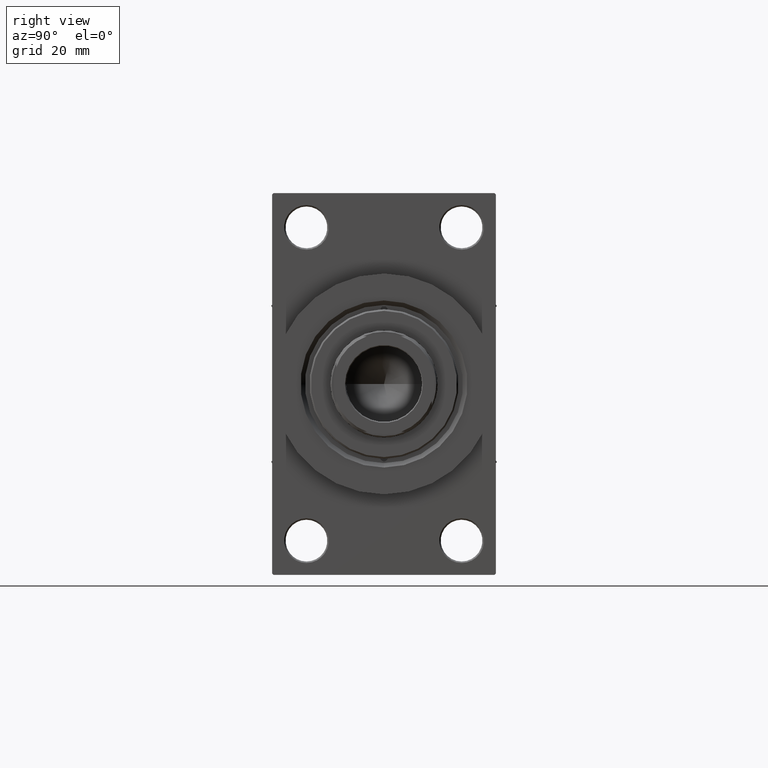
[diagram: clean part render]
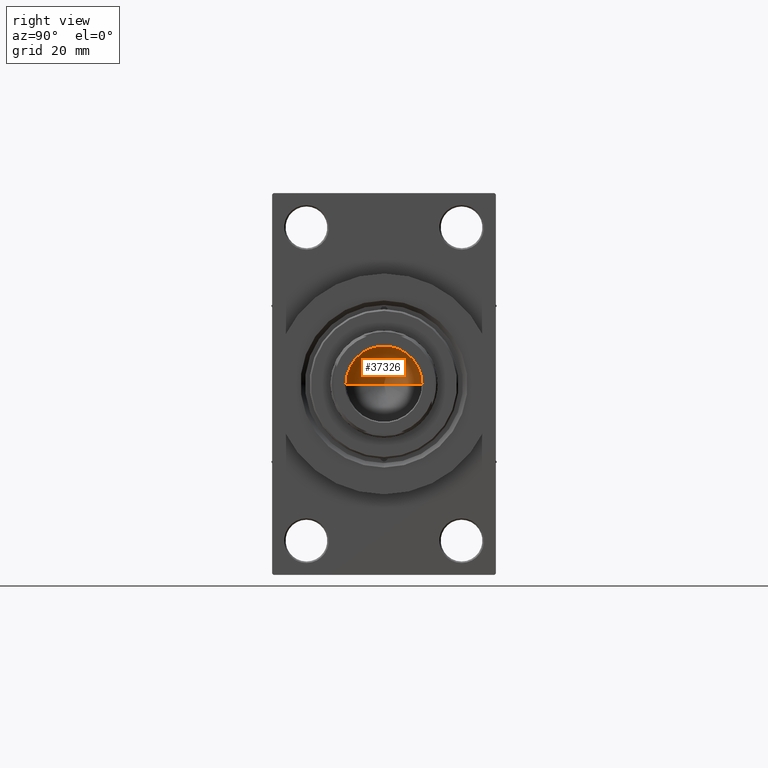
[diagram: same view with one face highlighted and labeled with its STEP entity id]
A machine part, right view. The second image highlights one B-rep face of the part: STEP entity #37326.
In plain terms, the highlighted conical surface has half-angle 59 deg.
Its self-contained STEP definition (entity closure, byte-faithful):
#455 = CIRCLE ( 'NONE', #32649, 12.74999999999998934 ) ;
#1174 = VERTEX_POINT ( 'NONE', #13029 ) ;
#1446 = EDGE_CURVE ( 'NONE', #29289, #32080, #32664, .T. ) ;
#2002 = VECTOR ( 'NONE', #11067, 1000.000000000000000 ) ;
#3103 = ORIENTED_EDGE ( 'NONE', *, *, #1446, .T. ) ;
#5238 = LINE ( 'NONE', #45566, #20052 ) ;
#10841 = ORIENTED_EDGE ( 'NONE', *, *, #32362, .F. ) ;
#11040 = AXIS2_PLACEMENT_3D ( 'NONE', #18596, #30119, #18840 ) ;
#11067 = DIRECTION ( 'NONE',  ( -0.8571673007021117785, 1.049727191138617956E-16, 0.5150380749100550437 ) ) ;
#13029 = CARTESIAN_POINT ( 'NONE',  ( 12.74999999999998934, 0.000000000000000000, 97.00000000000001421 ) ) ;
#15730 = FACE_OUTER_BOUND ( 'NONE', #43983, .T. ) ;
#18596 = CARTESIAN_POINT ( 'NONE',  ( 0.000000000000000000, 0.000000000000000000, 97.00000000000001421 ) ) ;
#18840 = DIRECTION ( 'NONE',  ( 1.000000000000000000, 0.000000000000000000, 0.000000000000000000 ) ) ;
#19836 = CARTESIAN_POINT ( 'NONE',  ( 0.000000000000000000, 0.000000000000000000, 97.00000000000001421 ) ) ;
#20052 = VECTOR ( 'NONE', #34276, 1000.000000000000000 ) ;
#22119 = ORIENTED_EDGE ( 'NONE', *, *, #46082, .T. ) ;
#26372 = CONICAL_SURFACE ( 'NONE', #11040, 12.74999999999998934, 1.029744258676653423 ) ;
#28343 = CARTESIAN_POINT ( 'NONE',  ( -12.74999999999998934, 1.561424668912873928E-15, 97.00000000000001421 ) ) ;
#29286 = CARTESIAN_POINT ( 'NONE',  ( -1.410643066818227497E-14, 0.000000000000000000, 89.33902710739862130 ) ) ;
#29289 = VERTEX_POINT ( 'NONE', #29286 ) ;
#30119 = DIRECTION ( 'NONE',  ( -0.000000000000000000, -0.000000000000000000, 1.000000000000000000 ) ) ;
#32043 = DIRECTION ( 'NONE',  ( 1.000000000000000000, 0.000000000000000000, 0.000000000000000000 ) ) ;
#32080 = VERTEX_POINT ( 'NONE', #28343 ) ;
#32362 = EDGE_CURVE ( 'NONE', #29289, #1174, #5238, .T. ) ;
#32649 = AXIS2_PLACEMENT_3D ( 'NONE', #19836, #34476, #32043 ) ;
#32664 = LINE ( 'NONE', #43713, #2002 ) ;
#34276 = DIRECTION ( 'NONE',  ( 0.8571673007021117785, 0.000000000000000000, 0.5150380749100550437 ) ) ;
#34476 = DIRECTION ( 'NONE',  ( -0.000000000000000000, -0.000000000000000000, 1.000000000000000000 ) ) ;
#37326 = ADVANCED_FACE ( 'NONE', ( #15730 ), #26372, .F. ) ;
#43713 = CARTESIAN_POINT ( 'NONE',  ( -12.74999999999998934, 1.561424668912873928E-15, 97.00000000000001421 ) ) ;
#43983 = EDGE_LOOP ( 'NONE', ( #10841, #3103, #22119 ) ) ;
#45566 = CARTESIAN_POINT ( 'NONE',  ( 12.74999999999998934, 0.000000000000000000, 97.00000000000001421 ) ) ;
#46082 = EDGE_CURVE ( 'NONE', #32080, #1174, #455, .T. ) ;